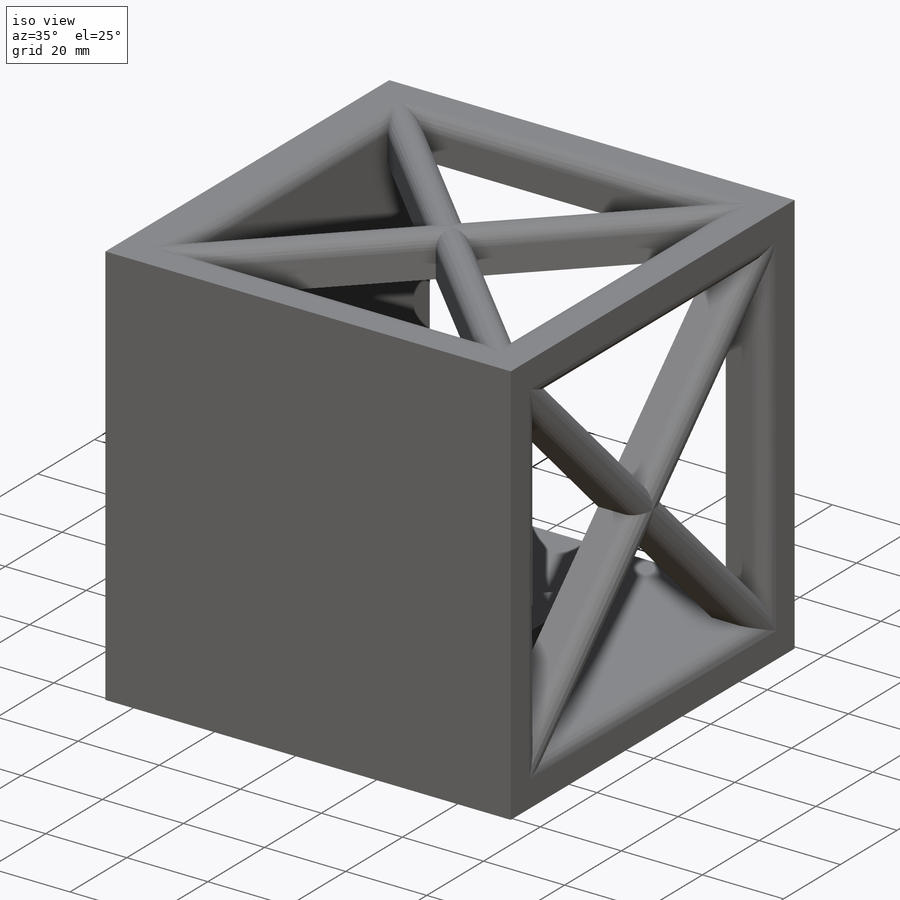
[diagram: iso view]
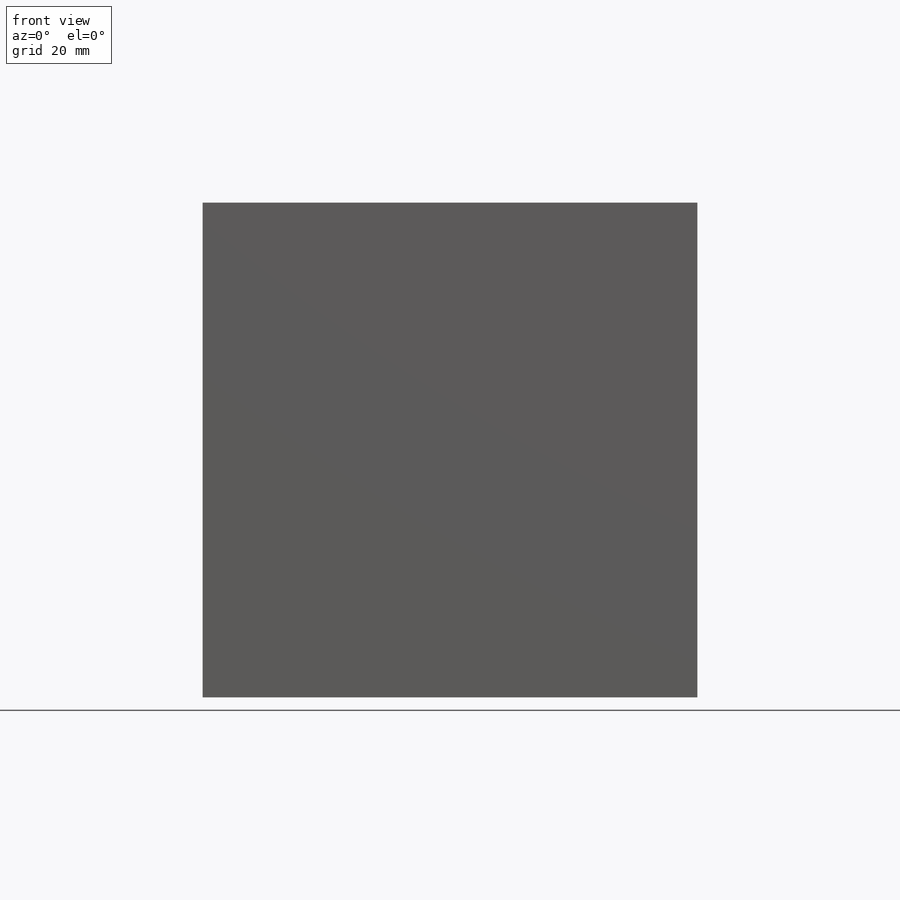
[diagram: front view]
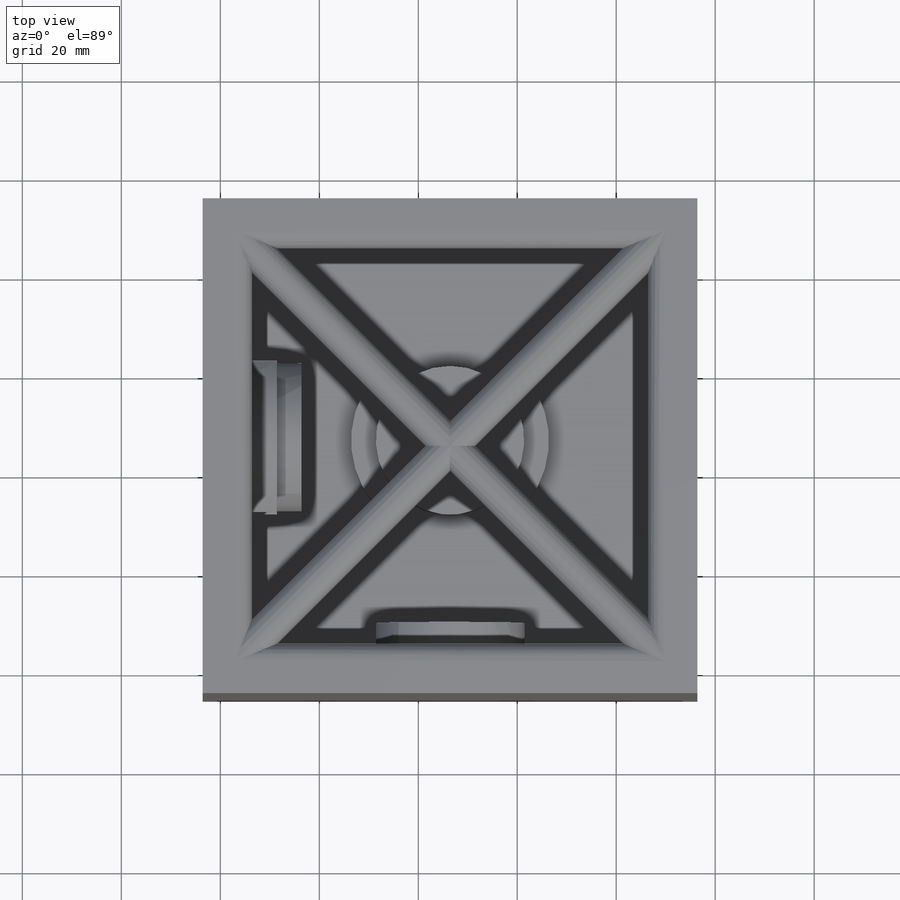
[diagram: top view]
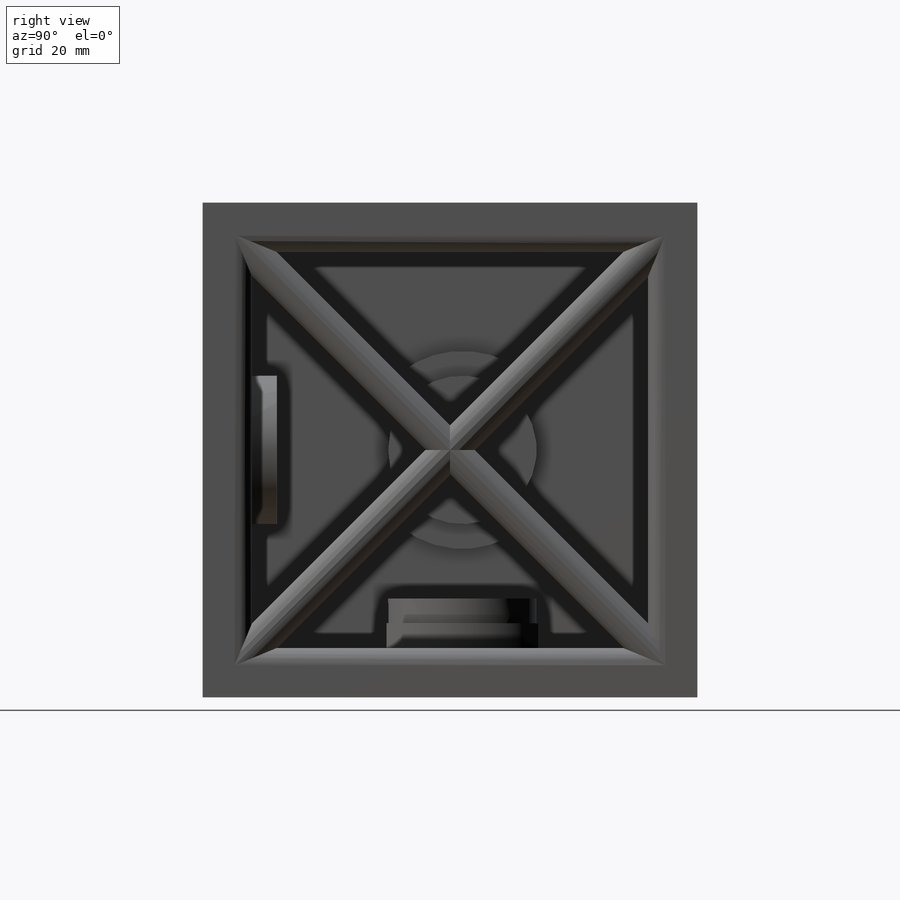
[diagram: right view]
SOLIDWORKS PART (.sldprt)
format: sldprt  version: not decoded by parser v0  size: 786,432 bytes
history: native  units: mm
features: sketch x17, extrude x12, fillet x11, cut_extrude x4, material x1, plane x1, mirror x1 (+11 scaffold rows collapsed)
feature tree (58):
  scaffold x11  (default folders/planes/origin — collapsed)
  material  "Material <not specified>"
  sketch  "Sketch1"  dims[D1=100.0mm]
  extrude  "Boss-Extrude1"  Depth=100mm
  sketch  "Sketch2"  dims[D1=80.0mm]
  cut_extrude  "Cut-Extrude1"  Depth=100mm
  sketch  "Sketch3"  dims[D1=80.0mm]
  cut_extrude  "Cut-Extrude2"  Depth=100mm
  sketch  "Sketch4"  dims[D1=70.0mm]
  cut_extrude  "Cut-Extrude3"  Depth=100mm
  fillet  "Fillet39"  Radius=3.505mm
  fillet  "Fillet40"  Radius=3.505mm
  fillet  "Fillet41"  Radius=3.505mm
  fillet  "Fillet42"  Radius=3.505mm
  sketch  "Sketch5"
  extrude  "Boss-Extrude2"  Depth=80mm
  sketch  "Sketch9"  dims[D1=5.0mm]
  extrude  "Boss-Extrude4"  Depth=10mm
  fillet  "Fillet106"  Radius=3.505mm
  fillet  "Fillet107"  Radius=3.505mm
  fillet  "Fillet108"  Radius=3.505mm
  plane  "Plane1"
  mirror  "Mirror3"
  fillet  "Fillet109"  Radius=3.505mm
  sketch  "Sketch10"
  extrude  "Boss-Extrude6"  Depth=10mm
  sketch  "Sketch11"
  extrude  "Boss-Extrude7"  Depth=10mm
  sketch  "Sketch12"  dims[D1=19.965mm]
  extrude  "Boss-Extrude8"  Depth=10mm
  sketch  "Sketch13"  dims[c1.D1=~33.290957mm c2.D1=45.0deg c2.D2=~69.455799mm c3.D2=45.0deg c3.D3=~36.074344mm c4.D3=45.0deg c4.D4=~60.210164mm c5.D4=45.0deg]
  extrude  "Boss-Extrude9"  Depth=5mm
  sketch  "Sketch18"  dims[D1=~22.335674mm]
  extrude  "Boss-Extrude10"  Depth=10mm
  sketch  "Sketch19"  dims[D1=~16.399252mm]
  extrude  "Boss-Extrude11"  Depth=5mm
  sketch  "Sketch22"
  sketch  "Sketch25"  dims[D1=5.0mm]
  cut_extrude  "Cut-Extrude4"  Depth=10mm
  sketch  "Sketch26"
  extrude  "Boss-Extrude12"  Depth=10mm
  fillet  "Fillet113"  Radius=3.505mm
  fillet  "Fillet114"  Radius=3.505mm
  sketch  "Sketch28"  dims[D1=~15.450253mm]
  extrude  "Boss-Extrude13"  Depth=10mm
  sketch  "Sketch29"  dims[D1=~21.465202mm]
  extrude  "Boss-Extrude14"  Depth=5mm
  fillet  "Fillet115"  Radius=3.505mm
decode coverage: 39 of 45 modeling features carry decoded parameters
note: ~ marks probable driven/reference dimensions
note: suppression state not decoded; provenance and decode notes live in map.json
